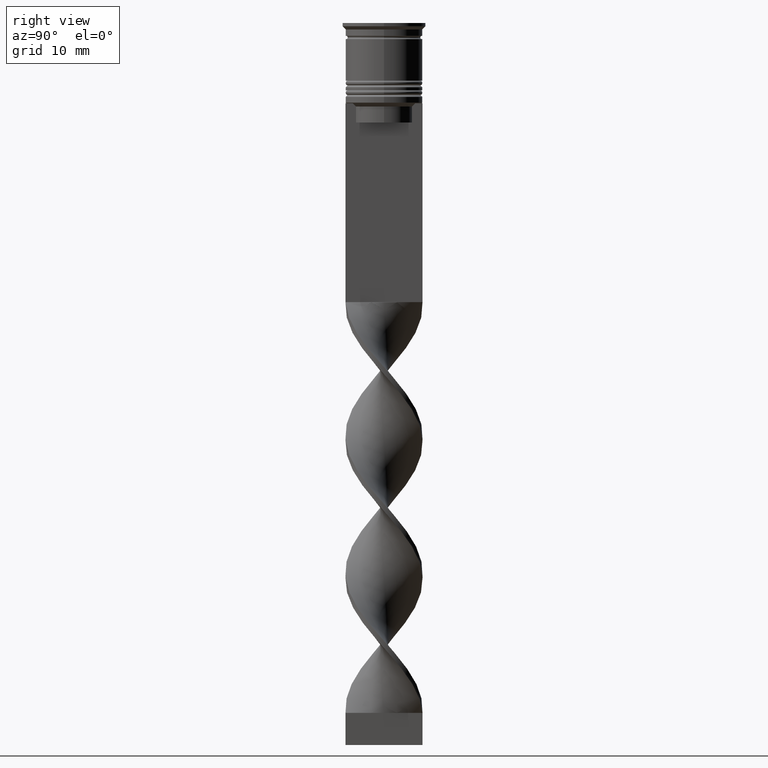
[diagram: clean part render]
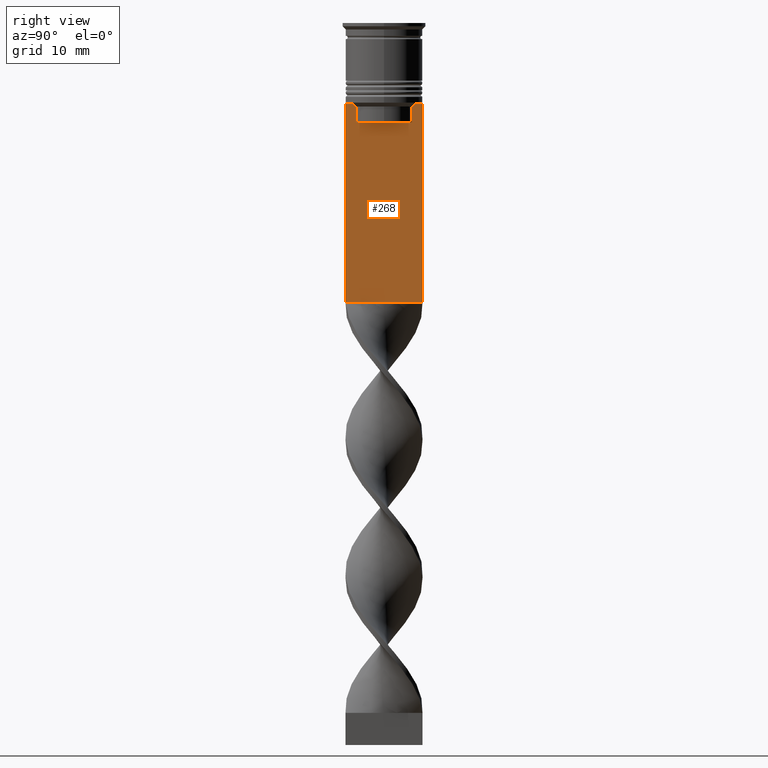
[diagram: same view with one face highlighted and labeled with its STEP entity id]
A machine part, right view. The second image highlights one B-rep face of the part: STEP entity #268.
In plain terms, the highlighted planar face has unit normal (-1, 0, 0).
Its self-contained STEP definition (entity closure, byte-faithful):
#34 = CARTESIAN_POINT ( 'NONE',  ( 0.5000000000000002220, -4.371498598878878816, -15.50000000000000000 ) ) ;
#61 = CARTESIAN_POINT ( 'NONE',  ( 0.5000000000000002220, -4.371498598878878816, -13.00000000000000178 ) ) ;
#64 = B_SPLINE_CURVE_WITH_KNOTS ( 'NONE', 3,
 ( #61, #1425, #3581, #2571 ),
 .UNSPECIFIED., .F., .F.,
 ( 4, 4 ),
 ( 0.02089901220910808308, 0.02161421017310286019 ),
 .UNSPECIFIED. ) ;
#88 = CARTESIAN_POINT ( 'NONE',  ( 0.5000000000000002220, 4.371498598878878816, -15.50000000000000000 ) ) ;
#94 = VERTEX_POINT ( 'NONE', #34 ) ;
#130 = CARTESIAN_POINT ( 'NONE',  ( 0.5000000000000002220, 4.874423042781576676, -12.50000000000000000 ) ) ;
#164 = DIRECTION ( 'NONE',  ( 0.000000000000000000, -1.000000000000000000, 0.000000000000000000 ) ) ;
#214 = DIRECTION ( 'NONE',  ( -0.000000000000000000, -0.000000000000000000, 1.000000000000000000 ) ) ;
#258 = ORIENTED_EDGE ( 'NONE', *, *, #2268, .T. ) ;
#268 = ADVANCED_FACE ( 'NONE', ( #2074 ), #1834, .F. ) ;
#294 = VECTOR ( 'NONE', #214, 1000.000000000000000 ) ;
#332 = CARTESIAN_POINT ( 'NONE',  ( 0.5000000000000002220, 6.000000000000000888, -0.4584054212077061097 ) ) ;
#338 = CARTESIAN_POINT ( 'NONE',  ( 0.5000000000000002220, -6.000000000000000000, -43.50000000000000000 ) ) ;
#389 = CARTESIAN_POINT ( 'NONE',  ( 0.5000000000000002220, 4.706831415367288329, -12.66671683478479160 ) ) ;
#395 = DIRECTION ( 'NONE',  ( 0.000000000000000000, -1.000000000000000000, 0.000000000000000000 ) ) ;
#410 = ORIENTED_EDGE ( 'NONE', *, *, #2011, .T. ) ;
#512 = CARTESIAN_POINT ( 'NONE',  ( 0.5000000000000002220, -4.371498598878878816, 0.000000000000000000 ) ) ;
#686 = VECTOR ( 'NONE', #1915, 1000.000000000000000 ) ;
#840 = CARTESIAN_POINT ( 'NONE',  ( 0.5000000000000002220, 4.399999999999999467, -15.50000000000000000 ) ) ;
#846 = DIRECTION ( 'NONE',  ( 0.000000000000000000, -1.000000000000000000, 0.000000000000000000 ) ) ;
#862 = CARTESIAN_POINT ( 'NONE',  ( 0.5000000000000002220, -6.000000000000000000, -12.50000000000000000 ) ) ;
#878 = DIRECTION ( 'NONE',  ( 0.000000000000000000, -1.000000000000000000, 0.000000000000000000 ) ) ;
#912 = EDGE_CURVE ( 'NONE', #1327, #1770, #2295, .T. ) ;
#928 = VERTEX_POINT ( 'NONE', #1974 ) ;
#937 = CARTESIAN_POINT ( 'NONE',  ( 0.5000000000000002220, -6.000000000000000000, -12.50000000000000000 ) ) ;
#942 = EDGE_CURVE ( 'NONE', #2471, #928, #2789, .T. ) ;
#986 = ORIENTED_EDGE ( 'NONE', *, *, #1810, .T. ) ;
#1076 = LINE ( 'NONE', #512, #294 ) ;
#1091 = EDGE_CURVE ( 'NONE', #1179, #2459, #2612, .T. ) ;
#1141 = ORIENTED_EDGE ( 'NONE', *, *, #2833, .T. ) ;
#1179 = VERTEX_POINT ( 'NONE', #2093 ) ;
#1188 = CARTESIAN_POINT ( 'NONE',  ( 0.5000000000000002220, 4.371498598878878816, -13.00000000000000178 ) ) ;
#1263 = AXIS2_PLACEMENT_3D ( 'NONE', #2632, #1545, #2923 ) ;
#1265 = VECTOR ( 'NONE', #878, 1000.000000000000000 ) ;
#1327 = VERTEX_POINT ( 'NONE', #1605 ) ;
#1425 = CARTESIAN_POINT ( 'NONE',  ( 0.5000000000000002220, -4.539195586926423331, -12.83338928448044314 ) ) ;
#1437 = DIRECTION ( 'NONE',  ( 0.000000000000000000, 0.000000000000000000, -1.000000000000000000 ) ) ;
#1470 = ORIENTED_EDGE ( 'NONE', *, *, #912, .T. ) ;
#1545 = DIRECTION ( 'NONE',  ( -1.000000000000000000, 0.000000000000000000, 0.000000000000000000 ) ) ;
#1605 = CARTESIAN_POINT ( 'NONE',  ( 0.5000000000000002220, 4.371498598878878816, -13.00000000000000178 ) ) ;
#1644 = ORIENTED_EDGE ( 'NONE', *, *, #2436, .F. ) ;
#1721 = ORIENTED_EDGE ( 'NONE', *, *, #2682, .T. ) ;
#1732 = CARTESIAN_POINT ( 'NONE',  ( 0.5000000000000002220, -5.878775382679627626, -12.50000000000000000 ) ) ;
#1770 = VERTEX_POINT ( 'NONE', #88 ) ;
#1810 = EDGE_CURVE ( 'NONE', #3136, #2471, #1830, .T. ) ;
#1830 = LINE ( 'NONE', #2381, #2218 ) ;
#1834 = PLANE ( 'NONE',  #1263 ) ;
#1915 = DIRECTION ( 'NONE',  ( 0.000000000000000000, -1.000000000000000000, 0.000000000000000000 ) ) ;
#1926 = VECTOR ( 'NONE', #2239, 1000.000000000000000 ) ;
#1974 = CARTESIAN_POINT ( 'NONE',  ( 0.5000000000000002220, 6.000000000000000888, -43.50000000000000000 ) ) ;
#2011 = EDGE_CURVE ( 'NONE', #2486, #1179, #2479, .T. ) ;
#2048 = CARTESIAN_POINT ( 'NONE',  ( 0.5000000000000002220, -4.874423042781576676, -12.50000000000000000 ) ) ;
#2074 = FACE_OUTER_BOUND ( 'NONE', #3181, .T. ) ;
#2093 = CARTESIAN_POINT ( 'NONE',  ( 0.5000000000000002220, 5.878775382679627626, -12.50000000000000000 ) ) ;
#2173 = CARTESIAN_POINT ( 'NONE',  ( 0.5000000000000002220, -6.000000000000000000, -12.50000000000000000 ) ) ;
#2188 = CARTESIAN_POINT ( 'NONE',  ( 0.5000000000000002220, -6.000000000000000000, -12.50000000000000000 ) ) ;
#2218 = VECTOR ( 'NONE', #2663, 1000.000000000000000 ) ;
#2239 = DIRECTION ( 'NONE',  ( 0.000000000000000000, 1.000000000000000000, 0.000000000000000000 ) ) ;
#2258 = CARTESIAN_POINT ( 'NONE',  ( 0.5000000000000002220, -4.371498598878878816, -13.00000000000000178 ) ) ;
#2268 = EDGE_CURVE ( 'NONE', #1770, #94, #2489, .T. ) ;
#2276 = ORIENTED_EDGE ( 'NONE', *, *, #942, .T. ) ;
#2295 = LINE ( 'NONE', #2804, #3104 ) ;
#2381 = CARTESIAN_POINT ( 'NONE',  ( 0.5000000000000002220, -6.000000000000000000, -0.4584054212077061097 ) ) ;
#2436 = EDGE_CURVE ( 'NONE', #2486, #928, #2566, .T. ) ;
#2459 = VERTEX_POINT ( 'NONE', #3178 ) ;
#2471 = VERTEX_POINT ( 'NONE', #2924 ) ;
#2479 = LINE ( 'NONE', #2173, #686 ) ;
#2486 = VERTEX_POINT ( 'NONE', #2654 ) ;
#2489 = LINE ( 'NONE', #840, #1265 ) ;
#2494 = VERTEX_POINT ( 'NONE', #2258 ) ;
#2566 = LINE ( 'NONE', #332, #3216 ) ;
#2571 = CARTESIAN_POINT ( 'NONE',  ( 0.5000000000000002220, -4.874423042781576676, -12.50000000000000000 ) ) ;
#2572 = DIRECTION ( 'NONE',  ( 0.000000000000000000, 0.000000000000000000, -1.000000000000000000 ) ) ;
#2586 = VECTOR ( 'NONE', #395, 1000.000000000000000 ) ;
#2612 = LINE ( 'NONE', #937, #2586 ) ;
#2632 = CARTESIAN_POINT ( 'NONE',  ( 0.5000000000000002220, -6.000000000000000000, -0.4584054212077061097 ) ) ;
#2645 = VECTOR ( 'NONE', #164, 1000.000000000000000 ) ;
#2654 = CARTESIAN_POINT ( 'NONE',  ( 0.5000000000000002220, 6.000000000000000888, -12.50000000000000000 ) ) ;
#2655 = CARTESIAN_POINT ( 'NONE',  ( 0.5000000000000002220, 4.539195634199896467, -12.83338923751318816 ) ) ;
#2663 = DIRECTION ( 'NONE',  ( 0.000000000000000000, 0.000000000000000000, -1.000000000000000000 ) ) ;
#2677 = CARTESIAN_POINT ( 'NONE',  ( 0.5000000000000002220, -6.000000000000000000, -12.50000000000000000 ) ) ;
#2682 = EDGE_CURVE ( 'NONE', #2689, #3136, #2862, .T. ) ;
#2689 = VERTEX_POINT ( 'NONE', #1732 ) ;
#2789 = LINE ( 'NONE', #338, #1926 ) ;
#2804 = CARTESIAN_POINT ( 'NONE',  ( 0.5000000000000002220, 4.371498598878878816, 0.000000000000000000 ) ) ;
#2833 = EDGE_CURVE ( 'NONE', #2494, #2914, #64, .T. ) ;
#2862 = LINE ( 'NONE', #862, #3269 ) ;
#2914 = VERTEX_POINT ( 'NONE', #2048 ) ;
#2923 = DIRECTION ( 'NONE',  ( 0.000000000000000000, 0.000000000000000000, 1.000000000000000000 ) ) ;
#2924 = CARTESIAN_POINT ( 'NONE',  ( 0.5000000000000002220, -5.999999999999999112, -43.50000000000000000 ) ) ;
#2951 = EDGE_CURVE ( 'NONE', #2914, #2689, #3436, .T. ) ;
#3072 = EDGE_CURVE ( 'NONE', #94, #2494, #1076, .T. ) ;
#3097 = ORIENTED_EDGE ( 'NONE', *, *, #2951, .T. ) ;
#3104 = VECTOR ( 'NONE', #2572, 1000.000000000000000 ) ;
#3136 = VERTEX_POINT ( 'NONE', #2188 ) ;
#3178 = CARTESIAN_POINT ( 'NONE',  ( 0.5000000000000002220, 4.874423042781576676, -12.50000000000000000 ) ) ;
#3181 = EDGE_LOOP ( 'NONE', ( #3196, #3289, #1470, #258, #3230, #1141, #3097, #1721, #986, #2276, #1644, #410 ) ) ;
#3196 = ORIENTED_EDGE ( 'NONE', *, *, #1091, .T. ) ;
#3216 = VECTOR ( 'NONE', #1437, 1000.000000000000000 ) ;
#3230 = ORIENTED_EDGE ( 'NONE', *, *, #3072, .T. ) ;
#3269 = VECTOR ( 'NONE', #846, 1000.000000000000000 ) ;
#3289 = ORIENTED_EDGE ( 'NONE', *, *, #3447, .T. ) ;
#3414 = B_SPLINE_CURVE_WITH_KNOTS ( 'NONE', 3,
 ( #130, #389, #2655, #1188 ),
 .UNSPECIFIED., .F., .F.,
 ( 4, 4 ),
 ( 0.008336552452178421987, 0.009045730124312839626 ),
 .UNSPECIFIED. ) ;
#3436 = LINE ( 'NONE', #2677, #2645 ) ;
#3447 = EDGE_CURVE ( 'NONE', #2459, #1327, #3414, .T. ) ;
#3581 = CARTESIAN_POINT ( 'NONE',  ( 0.5000000000000002220, -4.706831372970962768, -12.66671687695981774 ) ) ;